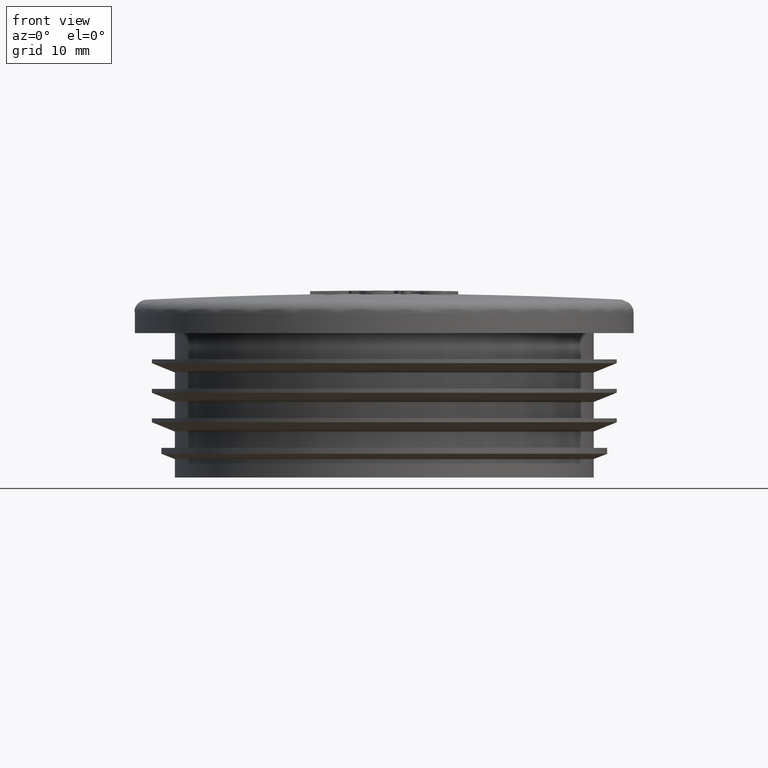
[diagram: clean part render]
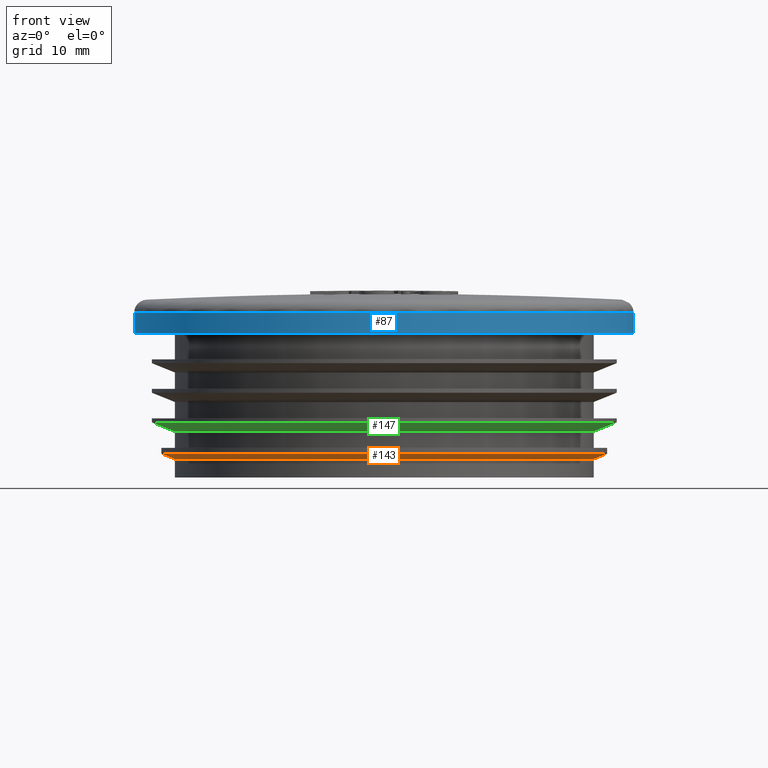
[diagram: same view with three faces highlighted in distinct colors, each labeled with its STEP entity id]
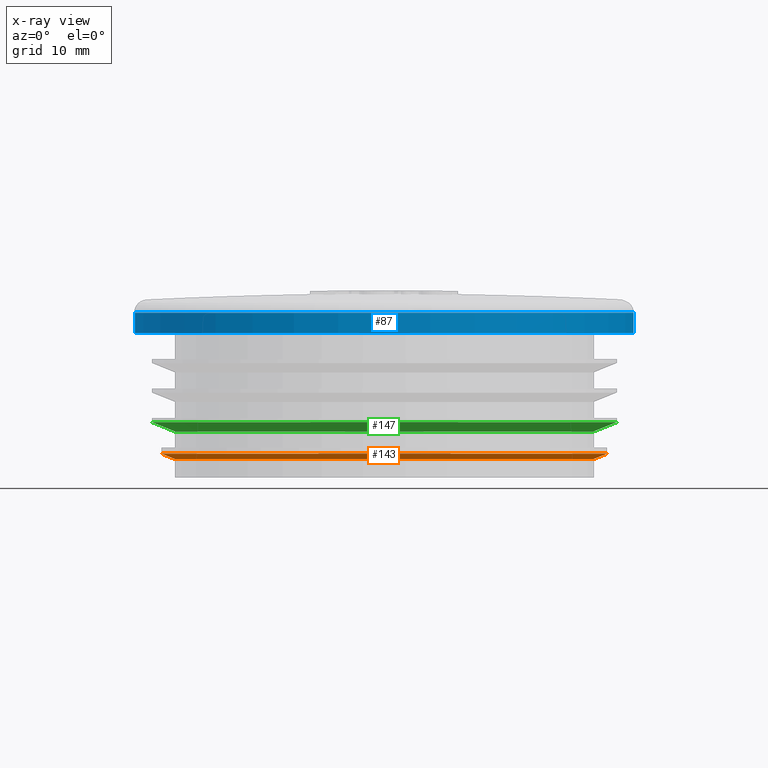
[diagram: x-ray of the same camera — body ghosted, the three highlighted faces saturated]
A machine part, front view with three faces highlighted in distinct colors.
The next image is the same camera in x-ray (body ghosted, the three faces saturated) — at least one of them is partly hidden behind the body in this view.
Their STEP definitions:

[orange] entity #143 — the highlighted conical surface has half-angle 68 deg.
#143 = ADVANCED_FACE( '', ( #315, #316 ), #317, .T. );
#315 = FACE_BOUND( '', #787, .T. );
#316 = FACE_OUTER_BOUND( '', #788, .T. );
#317 = CONICAL_SURFACE( '', #789, 33.9500000000000, 1.18682389135614 );
#787 = EDGE_LOOP( '', ( #1441 ) );
#788 = EDGE_LOOP( '', ( #1442 ) );
#789 = AXIS2_PLACEMENT_3D( '', #1443, #1444, #1445 );
#1441 = ORIENTED_EDGE( '', *, *, #1683, .F. );
#1442 = ORIENTED_EDGE( '', *, *, #1684, .T. );
#1443 = CARTESIAN_POINT( '', ( 0.000000000000000, -1.12614479134262E-015, 3.60805245167032 ) );
#1444 = DIRECTION( '', ( 0.000000000000000, 6.12303176911189E-017, 1.00000000000000 ) );
#1445 = DIRECTION( '', ( 0.000000000000000, -1.00000000000000, 6.12303176911189E-017 ) );
#1683 = EDGE_CURVE( '', #1963, #1963, #1964, .T. );
#1684 = EDGE_CURVE( '', #1965, #1965, #1966, .T. );
#1963 = VERTEX_POINT( '', #3315 );
#1964 = CIRCLE( '', #3316, 31.9500000000000 );
#1965 = VERTEX_POINT( '', #3317 );
#1966 = CIRCLE( '', #3318, 33.9500000000000 );
#3315 = CARTESIAN_POINT( '', ( 0.000000000000000, 31.9500000000000, 2.79999999999999 ) );
#3316 = AXIS2_PLACEMENT_3D( '', #3419, #3420, #3421 );
#3317 = CARTESIAN_POINT( '', ( 0.000000000000000, 33.9500000000000, 3.60805245167032 ) );
#3318 = AXIS2_PLACEMENT_3D( '', #3422, #3423, #3424 );
#3419 = CARTESIAN_POINT( '', ( 0.000000000000000, -1.17562209966948E-015, 2.79999999999999 ) );
#3420 = DIRECTION( '', ( 0.000000000000000, -6.12303176911189E-017, -1.00000000000000 ) );
#3421 = DIRECTION( '', ( 0.000000000000000, 1.00000000000000, -6.12303176911189E-017 ) );
#3422 = CARTESIAN_POINT( '', ( 0.000000000000000, -1.12614479134262E-015, 3.60805245167032 ) );
#3423 = DIRECTION( '', ( 0.000000000000000, -6.12303176911189E-017, -1.00000000000000 ) );
#3424 = DIRECTION( '', ( 0.000000000000000, 1.00000000000000, -6.12303176911189E-017 ) );

[blue] entity #87 — the highlighted cylindrical surface (bore or boss wall) has radius 38.15 mm, axis along (0, 0, 1).
#87 = ADVANCED_FACE( '', ( #196, #197 ), #198, .T. );
#196 = FACE_OUTER_BOUND( '', #484, .T. );
#197 = FACE_OUTER_BOUND( '', #485, .T. );
#198 = CYLINDRICAL_SURFACE( '', #486, 38.1500000000000 );
#484 = EDGE_LOOP( '', ( #994 ) );
#485 = EDGE_LOOP( '', ( #995 ) );
#486 = AXIS2_PLACEMENT_3D( '', #996, #997, #998 );
#994 = ORIENTED_EDGE( '', *, *, #1595, .F. );
#995 = ORIENTED_EDGE( '', *, *, #1592, .T. );
#996 = CARTESIAN_POINT( '', ( 0.000000000000000, 0.000000000000000, 22.0000000000000 ) );
#997 = DIRECTION( '', ( 0.000000000000000, 6.12303176911189E-017, 1.00000000000000 ) );
#998 = DIRECTION( '', ( 0.000000000000000, 1.00000000000000, -6.12303176911189E-017 ) );
#1592 = EDGE_CURVE( '', #1822, #1822, #1823, .T. );
#1595 = EDGE_CURVE( '', #1828, #1828, #1829, .T. );
#1822 = VERTEX_POINT( '', #2743 );
#1823 = CIRCLE( '', #2744, 38.1500000000000 );
#1828 = VERTEX_POINT( '', #2787 );
#1829 = CIRCLE( '', #2788, 38.1500000000000 );
#2743 = CARTESIAN_POINT( '', ( 0.000000000000000, 38.1500000000000, 25.0954261172819 ) );
#2744 = AXIS2_PLACEMENT_3D( '', #3360, #3361, #3362 );
#2787 = CARTESIAN_POINT( '', ( 0.000000000000000, 38.1500000000000, 22.0000000000000 ) );
#2788 = AXIS2_PLACEMENT_3D( '', #3363, #3364, #3365 );
#3360 = CARTESIAN_POINT( '', ( 0.000000000000000, 1.89533924550555E-016, 25.0954261172819 ) );
#3361 = DIRECTION( '', ( 0.000000000000000, -6.12303176911189E-017, -1.00000000000000 ) );
#3362 = DIRECTION( '', ( 0.000000000000000, 1.00000000000000, -6.12303176911189E-017 ) );
#3363 = CARTESIAN_POINT( '', ( 0.000000000000000, 7.96632521552264E-032, 22.0000000000000 ) );
#3364 = DIRECTION( '', ( 0.000000000000000, -6.12303176911189E-017, -1.00000000000000 ) );
#3365 = DIRECTION( '', ( 0.000000000000000, 1.00000000000000, -6.12303176911189E-017 ) );

[green] entity #147 — the highlighted conical surface has half-angle 68 deg.
#147 = ADVANCED_FACE( '', ( #327, #328 ), #329, .T. );
#327 = FACE_BOUND( '', #799, .T. );
#328 = FACE_OUTER_BOUND( '', #800, .T. );
#329 = CONICAL_SURFACE( '', #801, 35.4500000000000, 1.18682389135615 );
#799 = EDGE_LOOP( '', ( #1461 ) );
#800 = EDGE_LOOP( '', ( #1462 ) );
#801 = AXIS2_PLACEMENT_3D( '', #1463, #1464, #1465 );
#1461 = ORIENTED_EDGE( '', *, *, #1687, .F. );
#1462 = ORIENTED_EDGE( '', *, *, #1688, .T. );
#1463 = CARTESIAN_POINT( '', ( 0.000000000000000, -8.31869475794778E-016, 8.41409179042303 ) );
#1464 = DIRECTION( '', ( 0.000000000000000, 6.12303176911189E-017, 1.00000000000000 ) );
#1465 = DIRECTION( '', ( 0.000000000000000, -1.00000000000000, 6.12303176911189E-017 ) );
#1687 = EDGE_CURVE( '', #1971, #1971, #1972, .T. );
#1688 = EDGE_CURVE( '', #1973, #1973, #1974, .T. );
#1971 = VERTEX_POINT( '', #3323 );
#1972 = CIRCLE( '', #3324, 31.9500000000000 );
#1973 = VERTEX_POINT( '', #3325 );
#1974 = CIRCLE( '', #3326, 35.4500000000000 );
#3323 = CARTESIAN_POINT( '', ( 0.000000000000000, 31.9500000000000, 6.99999999999999 ) );
#3324 = AXIS2_PLACEMENT_3D( '', #3431, #3432, #3433 );
#3325 = CARTESIAN_POINT( '', ( 0.000000000000000, 35.4500000000000, 8.41409179042303 ) );
#3326 = AXIS2_PLACEMENT_3D( '', #3434, #3435, #3436 );
#3431 = CARTESIAN_POINT( '', ( 0.000000000000000, -9.18454765366783E-016, 6.99999999999999 ) );
#3432 = DIRECTION( '', ( 0.000000000000000, -6.12303176911189E-017, -1.00000000000000 ) );
#3433 = DIRECTION( '', ( 0.000000000000000, 1.00000000000000, -6.12303176911189E-017 ) );
#3434 = CARTESIAN_POINT( '', ( 0.000000000000000, -8.31869475794778E-016, 8.41409179042303 ) );
#3435 = DIRECTION( '', ( 0.000000000000000, -6.12303176911189E-017, -1.00000000000000 ) );
#3436 = DIRECTION( '', ( 0.000000000000000, 1.00000000000000, -6.12303176911189E-017 ) );